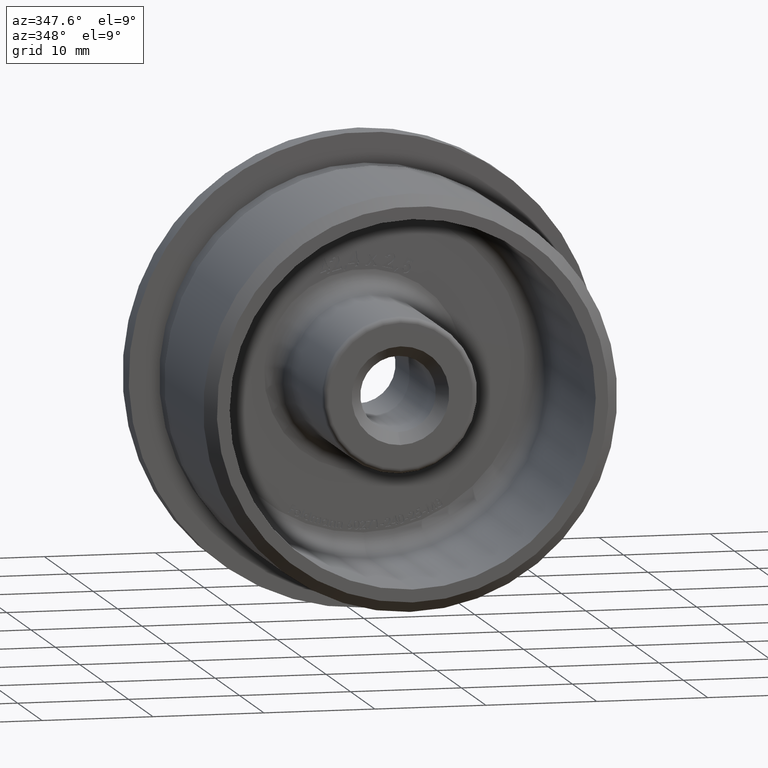
[diagram: clean part render]
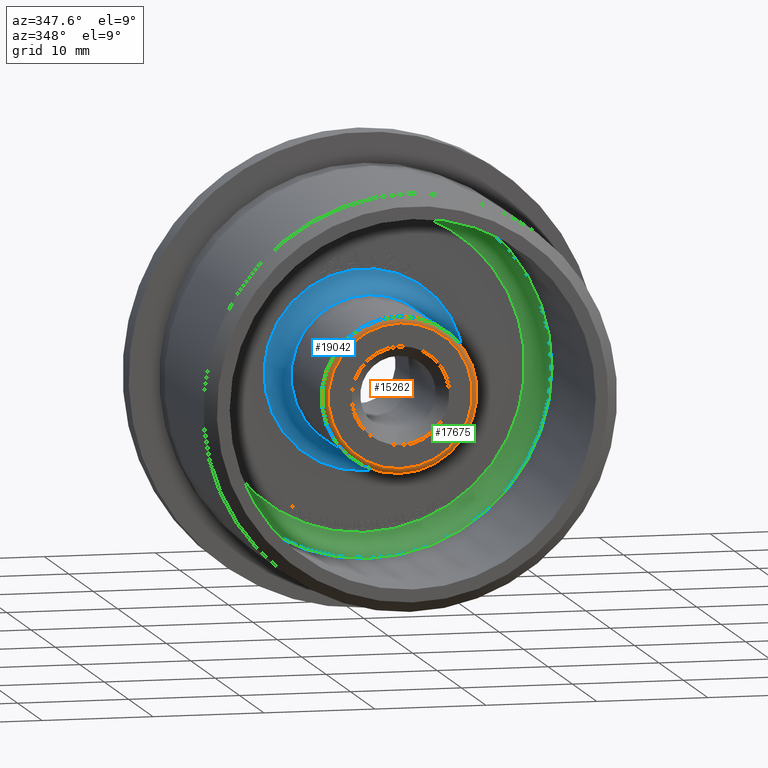
[diagram: same view with three faces highlighted in distinct colors, each labeled with its STEP entity id]
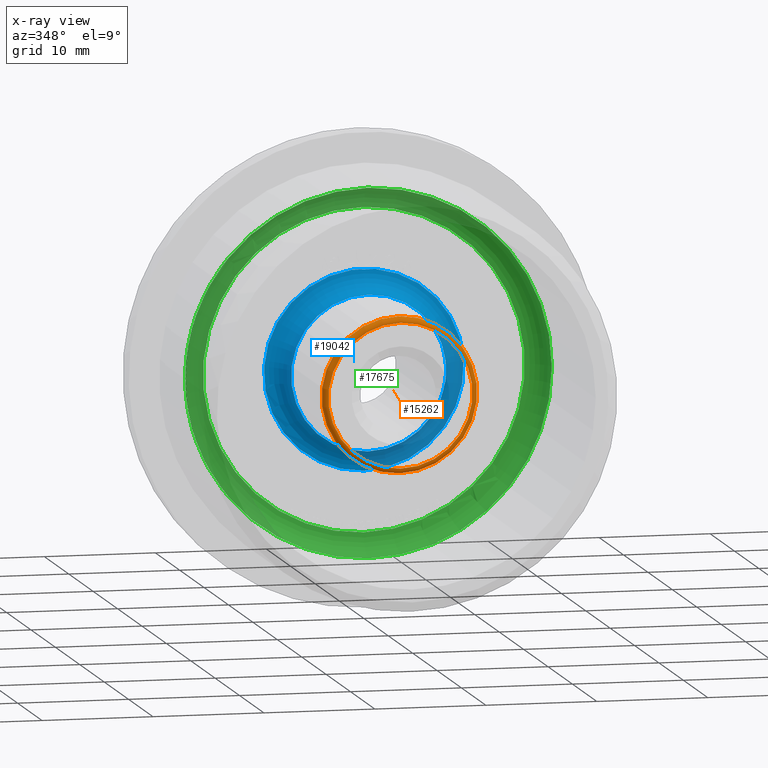
[diagram: x-ray of the same camera — body ghosted, the three highlighted faces saturated]
A machine part, auxiliary view with three faces highlighted in distinct colors.
The next image is the same camera in x-ray (body ghosted, the three faces saturated) — at least one of them is partly hidden behind the body in this view.
Their STEP definitions:

[orange] entity #15262 — the highlighted toroidal blend (fillet) surface has major radius 6.5 mm and minor (blend) radius 0.5 mm.
#2156 = DIRECTION ( 'NONE',  ( -0.0000000000000000000, -1.000000000000000000, -0.0000000000000000000 ) ) ;
#5115 = VERTEX_POINT ( 'NONE', #11739 ) ;
#5299 = EDGE_LOOP ( 'NONE', ( #17176 ) ) ;
#5983 = CARTESIAN_POINT ( 'NONE',  ( 0.0000000000000000000, 4.999999999999999100, 0.0000000000000000000 ) ) ;
#7517 = DIRECTION ( 'NONE',  ( 0.0000000000000000000, 1.000000000000000000, 0.0000000000000000000 ) ) ;
#8704 = AXIS2_PLACEMENT_3D ( 'NONE', #12644, #2156, #18499 ) ;
#9886 = FACE_OUTER_BOUND ( 'NONE', #11464, .T. ) ;
#10383 = CARTESIAN_POINT ( 'NONE',  ( 0.0000000000000000000, 5.500000000000000000, 0.0000000000000000000 ) ) ;
#10836 = CIRCLE ( 'NONE', #10962, 6.500000000000000900 ) ;
#10962 = AXIS2_PLACEMENT_3D ( 'NONE', #5983, #16601, #13679 ) ;
#11326 = AXIS2_PLACEMENT_3D ( 'NONE', #10383, #7517, #17806 ) ;
#11464 = EDGE_LOOP ( 'NONE', ( #16531 ) ) ;
#11739 = CARTESIAN_POINT ( 'NONE',  ( 0.0000000000000000000, 4.999999999999999100, -6.500000000000000900 ) ) ;
#11897 = VERTEX_POINT ( 'NONE', #16304 ) ;
#12644 = CARTESIAN_POINT ( 'NONE',  ( 0.0000000000000000000, 5.500000000000000000, 0.0000000000000000000 ) ) ;
#13679 = DIRECTION ( 'NONE',  ( 0.0000000000000000000, 0.0000000000000000000, -1.000000000000000000 ) ) ;
#13853 = CIRCLE ( 'NONE', #11326, 7.000000000000000900 ) ;
#14243 = EDGE_CURVE ( 'NONE', #5115, #5115, #10836, .T. ) ;
#15021 = TOROIDAL_SURFACE ( 'NONE', #8704, 6.500000000000000900, 0.5000000000000000000 ) ;
#15115 = EDGE_CURVE ( 'NONE', #11897, #11897, #13853, .T. ) ;
#15262 = ADVANCED_FACE ( 'NONE', ( #9886, #16178 ), #15021, .T. ) ;
#16178 = FACE_OUTER_BOUND ( 'NONE', #5299, .T. ) ;
#16304 = CARTESIAN_POINT ( 'NONE',  ( 0.0000000000000000000, 5.500000000000000000, -7.000000000000000900 ) ) ;
#16531 = ORIENTED_EDGE ( 'NONE', *, *, #15115, .F. ) ;
#16601 = DIRECTION ( 'NONE',  ( -0.0000000000000000000, -1.000000000000000000, -0.0000000000000000000 ) ) ;
#17176 = ORIENTED_EDGE ( 'NONE', *, *, #14243, .F. ) ;
#17806 = DIRECTION ( 'NONE',  ( 0.0000000000000000000, 0.0000000000000000000, -1.000000000000000000 ) ) ;
#18499 = DIRECTION ( 'NONE',  ( 0.0000000000000000000, 0.0000000000000000000, -1.000000000000000000 ) ) ;

[blue] entity #19042 — the highlighted toroidal blend (fillet) surface has major radius 9 mm and minor (blend) radius 2 mm.
#90 = AXIS2_PLACEMENT_3D ( 'NONE', #18581, #2181, #17108 ) ;
#1167 = VERTEX_POINT ( 'NONE', #13786 ) ;
#1190 = CARTESIAN_POINT ( 'NONE',  ( 0.0000000000000000000, 18.00000000000000400, 0.0000000000000000000 ) ) ;
#1848 = ORIENTED_EDGE ( 'NONE', *, *, #12061, .F. ) ;
#2181 = DIRECTION ( 'NONE',  ( 0.0000000000000000000, 1.000000000000000000, 0.0000000000000000000 ) ) ;
#2859 = ORIENTED_EDGE ( 'NONE', *, *, #13455, .F. ) ;
#3514 = FACE_OUTER_BOUND ( 'NONE', #13051, .T. ) ;
#3955 = VERTEX_POINT ( 'NONE', #16552 ) ;
#3984 = AXIS2_PLACEMENT_3D ( 'NONE', #14622, #4126, #7080 ) ;
#4126 = DIRECTION ( 'NONE',  ( -0.0000000000000000000, -1.000000000000000000, -0.0000000000000000000 ) ) ;
#5476 = DIRECTION ( 'NONE',  ( -0.0000000000000000000, -1.000000000000000000, -0.0000000000000000000 ) ) ;
#6997 = DIRECTION ( 'NONE',  ( 0.0000000000000000000, 0.0000000000000000000, -1.000000000000000000 ) ) ;
#7080 = DIRECTION ( 'NONE',  ( 0.0000000000000000000, 0.0000000000000000000, -1.000000000000000000 ) ) ;
#8117 = CIRCLE ( 'NONE', #10827, 7.000000000000000900 ) ;
#9115 = TOROIDAL_SURFACE ( 'NONE', #3984, 9.000000000000001800, 2.000000000000000000 ) ;
#10110 = EDGE_LOOP ( 'NONE', ( #2859 ) ) ;
#10827 = AXIS2_PLACEMENT_3D ( 'NONE', #1190, #5476, #6997 ) ;
#12061 = EDGE_CURVE ( 'NONE', #3955, #3955, #8117, .T. ) ;
#12363 = FACE_OUTER_BOUND ( 'NONE', #10110, .T. ) ;
#13051 = EDGE_LOOP ( 'NONE', ( #1848 ) ) ;
#13455 = EDGE_CURVE ( 'NONE', #1167, #1167, #14378, .T. ) ;
#13786 = CARTESIAN_POINT ( 'NONE',  ( 0.0000000000000000000, 20.00000000000000400, -9.000000000000001800 ) ) ;
#14378 = CIRCLE ( 'NONE', #90, 9.000000000000001800 ) ;
#14622 = CARTESIAN_POINT ( 'NONE',  ( 0.0000000000000000000, 18.00000000000000400, 0.0000000000000000000 ) ) ;
#16552 = CARTESIAN_POINT ( 'NONE',  ( 0.0000000000000000000, 18.00000000000000400, -7.000000000000000900 ) ) ;
#17108 = DIRECTION ( 'NONE',  ( 0.0000000000000000000, 0.0000000000000000000, -1.000000000000000000 ) ) ;
#18581 = CARTESIAN_POINT ( 'NONE',  ( 0.0000000000000000000, 20.00000000000000400, 0.0000000000000000000 ) ) ;
#19042 = ADVANCED_FACE ( 'NONE', ( #12363, #3514 ), #9115, .F. ) ;

[green] entity #17675 — the highlighted toroidal blend (fillet) surface has major radius 14.5 mm and minor (blend) radius 2 mm.
#382 = CARTESIAN_POINT ( 'NONE',  ( 0.0000000000000000000, 20.00000000000000400, 0.0000000000000000000 ) ) ;
#3724 = CARTESIAN_POINT ( 'NONE',  ( 0.0000000000000000000, 18.00000000000000400, 0.0000000000000000000 ) ) ;
#3978 = VERTEX_POINT ( 'NONE', #10886 ) ;
#4676 = DIRECTION ( 'NONE',  ( -0.0000000000000000000, -1.000000000000000000, -0.0000000000000000000 ) ) ;
#5457 = EDGE_CURVE ( 'NONE', #3978, #3978, #16440, .T. ) ;
#6326 = EDGE_LOOP ( 'NONE', ( #9548 ) ) ;
#6662 = DIRECTION ( 'NONE',  ( 0.0000000000000000000, 1.000000000000000000, 0.0000000000000000000 ) ) ;
#6840 = DIRECTION ( 'NONE',  ( -0.0000000000000000000, -1.000000000000000000, -0.0000000000000000000 ) ) ;
#7027 = VERTEX_POINT ( 'NONE', #15036 ) ;
#7249 = FACE_OUTER_BOUND ( 'NONE', #14081, .T. ) ;
#8173 = CIRCLE ( 'NONE', #11304, 16.50000000000000000 ) ;
#8254 = DIRECTION ( 'NONE',  ( 0.0000000000000000000, 0.0000000000000000000, -1.000000000000000000 ) ) ;
#9497 = EDGE_CURVE ( 'NONE', #7027, #7027, #8173, .T. ) ;
#9548 = ORIENTED_EDGE ( 'NONE', *, *, #5457, .F. ) ;
#10886 = CARTESIAN_POINT ( 'NONE',  ( 0.0000000000000000000, 20.00000000000000400, -14.50000000000000000 ) ) ;
#11141 = CARTESIAN_POINT ( 'NONE',  ( 0.0000000000000000000, 18.00000000000000400, 0.0000000000000000000 ) ) ;
#11304 = AXIS2_PLACEMENT_3D ( 'NONE', #3724, #6662, #18566 ) ;
#11438 = FACE_OUTER_BOUND ( 'NONE', #6326, .T. ) ;
#12297 = DIRECTION ( 'NONE',  ( 0.0000000000000000000, 0.0000000000000000000, -1.000000000000000000 ) ) ;
#14081 = EDGE_LOOP ( 'NONE', ( #16484 ) ) ;
#15036 = CARTESIAN_POINT ( 'NONE',  ( 0.0000000000000000000, 18.00000000000000400, -16.50000000000000000 ) ) ;
#16440 = CIRCLE ( 'NONE', #17895, 14.50000000000000000 ) ;
#16484 = ORIENTED_EDGE ( 'NONE', *, *, #9497, .F. ) ;
#16567 = TOROIDAL_SURFACE ( 'NONE', #17715, 14.50000000000000000, 2.000000000000000000 ) ;
#17675 = ADVANCED_FACE ( 'NONE', ( #7249, #11438 ), #16567, .F. ) ;
#17715 = AXIS2_PLACEMENT_3D ( 'NONE', #11141, #6840, #8254 ) ;
#17895 = AXIS2_PLACEMENT_3D ( 'NONE', #382, #4676, #12297 ) ;
#18566 = DIRECTION ( 'NONE',  ( 0.0000000000000000000, 0.0000000000000000000, -1.000000000000000000 ) ) ;